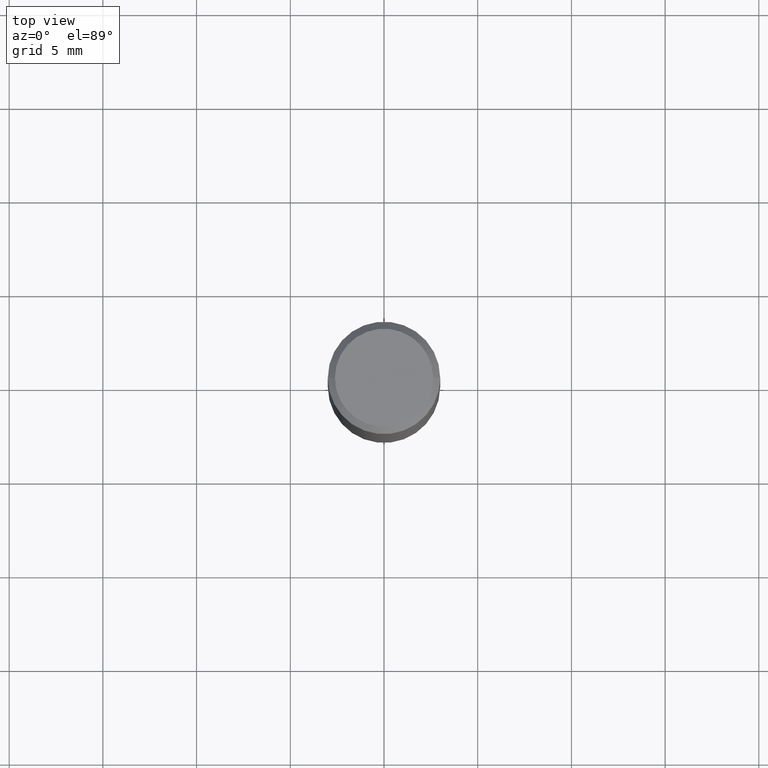
[diagram: clean part render]
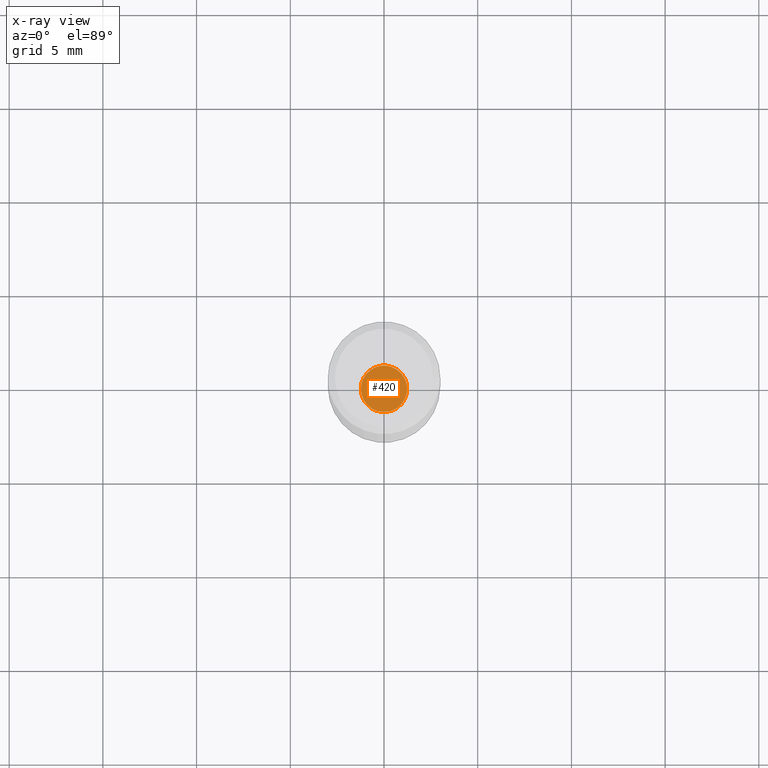
[diagram: x-ray — body ghosted, one internal face saturated and labeled with its STEP entity id]
A machine part, top view, then the same camera in x-ray: the body is ghosted and one INTERNAL B-rep face — a face not visible from any outside direction — is saturated and labeled: STEP entity #420.
In plain terms, the highlighted planar face has unit normal (-0, 0, 1).
Its self-contained STEP definition (entity closure, byte-faithful):
#52 = ORIENTED_EDGE ( 'NONE', *, *, #108, .F. ) ;
#61 = PLANE ( 'NONE',  #437 ) ;
#69 = AXIS2_PLACEMENT_3D ( 'NONE', #286, #249, #114 ) ;
#71 = CIRCLE ( 'NONE', #69, 0.04870000000000000023 ) ;
#72 = VERTEX_POINT ( 'NONE', #435 ) ;
#103 = ORIENTED_EDGE ( 'NONE', *, *, #443, .F. ) ;
#108 = EDGE_CURVE ( 'NONE', #72, #337, #71, .T. ) ;
#114 = DIRECTION ( 'NONE',  ( 1.000000000000000000, -6.982962677686271444E-15, 0.000000000000000000 ) ) ;
#159 = CARTESIAN_POINT ( 'NONE',  ( -0.04870000000000000023, -4.338630157907644295E-15, -1.342500000000000249 ) ) ;
#166 = DIRECTION ( 'NONE',  ( -2.445468806185136597E-29, 3.491481338843145583E-15, 1.000000000000000000 ) ) ;
#203 = CIRCLE ( 'NONE', #226, 0.04870000000000000023 ) ;
#226 = AXIS2_PLACEMENT_3D ( 'NONE', #278, #166, #230 ) ;
#230 = DIRECTION ( 'NONE',  ( 1.000000000000000000, -6.982962677686271444E-15, 0.000000000000000000 ) ) ;
#235 = DIRECTION ( 'NONE',  ( -2.438088387897960049E-29, 3.491481338843145188E-15, 1.000000000000000000 ) ) ;
#238 = DIRECTION ( 'NONE',  ( 1.000000000000000000, -6.982962677686265922E-15, 4.876176775795935793E-29 ) ) ;
#249 = DIRECTION ( 'NONE',  ( -2.445468806185136597E-29, 3.491481338843145583E-15, 1.000000000000000000 ) ) ;
#278 = CARTESIAN_POINT ( 'NONE',  ( 3.283041872303546419E-29, -4.687313697396923253E-15, -1.342500000000000249 ) ) ;
#279 = EDGE_LOOP ( 'NONE', ( #52, #103 ) ) ;
#286 = CARTESIAN_POINT ( 'NONE',  ( 3.283041872303546419E-29, -4.687313697396923253E-15, -1.342500000000000249 ) ) ;
#314 = FACE_OUTER_BOUND ( 'NONE', #279, .T. ) ;
#337 = VERTEX_POINT ( 'NONE', #159 ) ;
#385 = CARTESIAN_POINT ( 'NONE',  ( 3.283041872303546419E-29, -4.687313697396923253E-15, -1.342500000000000249 ) ) ;
#420 = ADVANCED_FACE ( 'NONE', ( #314 ), #61, .F. ) ;
#435 = CARTESIAN_POINT ( 'NONE',  ( 0.04870000000000000023, -5.027383979800244770E-15, -1.342500000000000249 ) ) ;
#437 = AXIS2_PLACEMENT_3D ( 'NONE', #385, #235, #238 ) ;
#443 = EDGE_CURVE ( 'NONE', #337, #72, #203, .T. ) ;